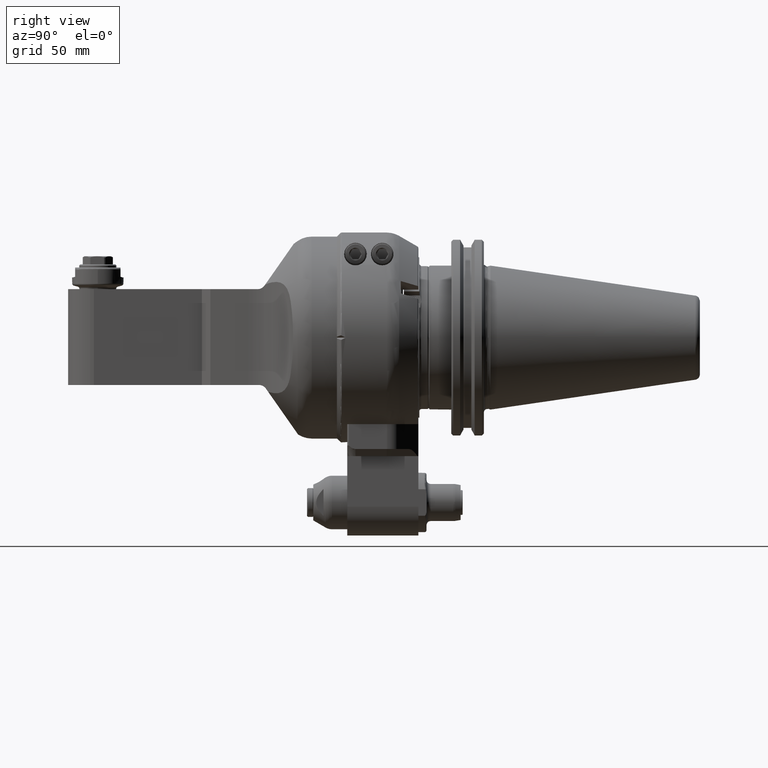
[diagram: clean part render]
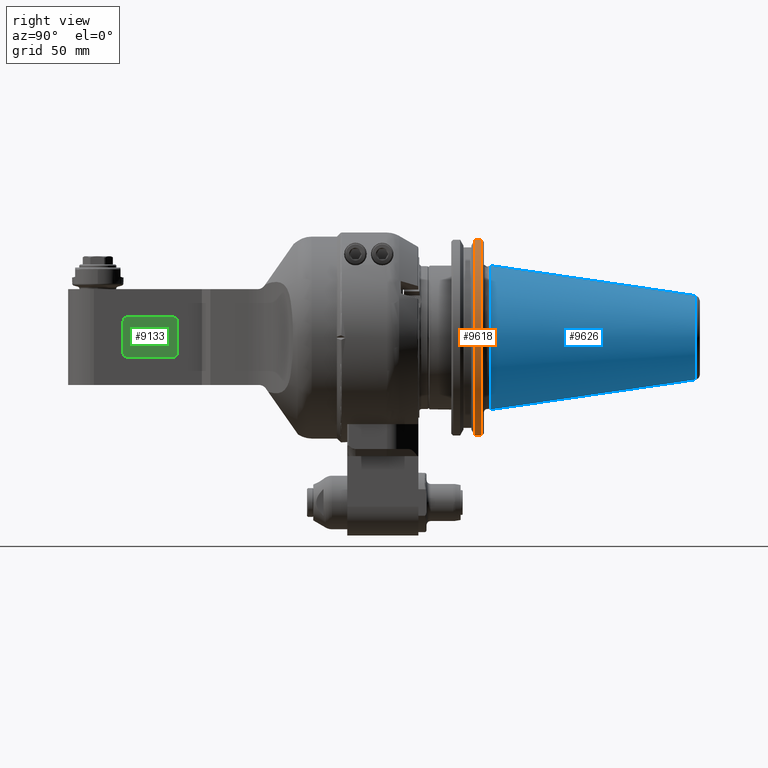
[diagram: same view with three faces highlighted in distinct colors, each labeled with its STEP entity id]
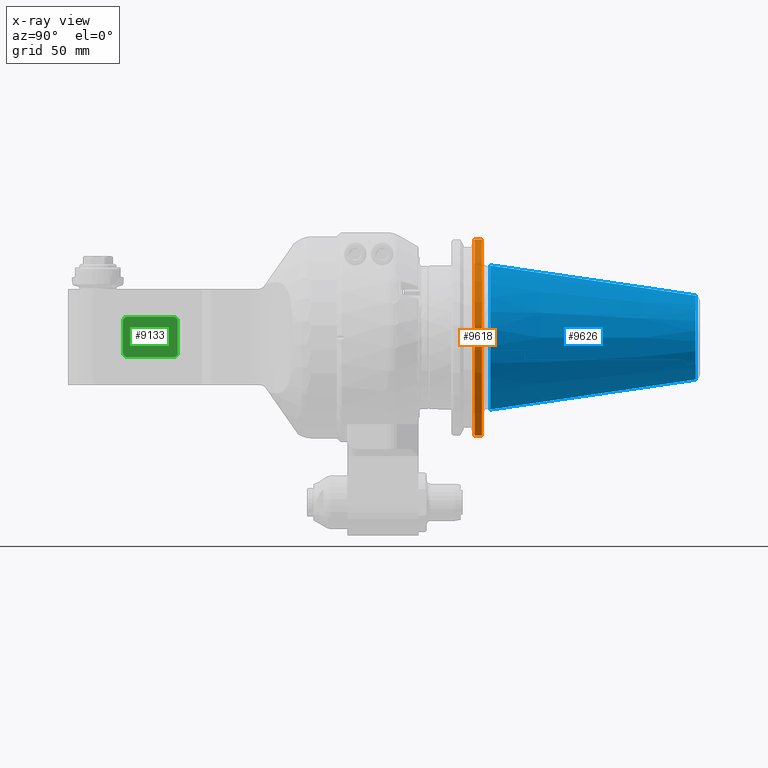
[diagram: x-ray of the same camera — body ghosted, the three highlighted faces saturated]
A machine part, right view with three faces highlighted in distinct colors.
The next image is the same camera in x-ray (body ghosted, the three faces saturated) — at least one of them is partly hidden behind the body in this view.
Their STEP definitions:

[orange] entity #9618 — the highlighted cylindrical surface (partial cylindrical patch) has radius 49.2125 mm, axis along (0, -1, 0).
#596=CYLINDRICAL_SURFACE('',#10758,1.9375);
#1099=CIRCLE('',#10757,1.9375);
#1100=CIRCLE('',#10759,1.9375);
#1642=FACE_OUTER_BOUND('',#2302,.T.);
#2302=EDGE_LOOP('',(#8472,#8473,#8474,#8475));
#2979=LINE('',#18877,#3660);
#2986=LINE('',#18906,#3667);
#3660=VECTOR('',#13475,0.137296583894724);
#3667=VECTOR('',#13494,0.137296583894724);
#4566=VERTEX_POINT('',#18871);
#4568=VERTEX_POINT('',#18876);
#4577=VERTEX_POINT('',#18899);
#4578=VERTEX_POINT('',#18905);
#5893=EDGE_CURVE('',#4568,#4566,#2979,.T.);
#5905=EDGE_CURVE('',#4577,#4566,#1099,.T.);
#5906=EDGE_CURVE('',#4577,#4578,#2986,.T.);
#5907=EDGE_CURVE('',#4568,#4578,#1100,.T.);
#8472=ORIENTED_EDGE('',*,*,#5905,.F.);
#8473=ORIENTED_EDGE('',*,*,#5906,.T.);
#8474=ORIENTED_EDGE('',*,*,#5907,.F.);
#8475=ORIENTED_EDGE('',*,*,#5893,.T.);
#9618=ADVANCED_FACE('',(#1642),#596,.T.);
#10757=AXIS2_PLACEMENT_3D('',#18903,#13490,#13491);
#10758=AXIS2_PLACEMENT_3D('',#18904,#13492,#13493);
#10759=AXIS2_PLACEMENT_3D('',#18907,#13495,#13496);
#13475=DIRECTION('',(-4.482491104692E-14,-1.,1.426247169675E-14));
#13490=DIRECTION('center_axis',(0.,-1.,0.));
#13491=DIRECTION('ref_axis',(0.2632258064516,0.,-0.964734250878399));
#13492=DIRECTION('center_axis',(0.,-1.,0.));
#13493=DIRECTION('ref_axis',(1.,0.,0.));
#13494=DIRECTION('',(-1.731871563176E-14,1.,0.));
#13495=DIRECTION('center_axis',(0.,1.,0.));
#13496=DIRECTION('ref_axis',(1.,0.,0.));
#18871=CARTESIAN_POINT('',(0.51,2.63189632949094,1.86917261107677));
#18876=CARTESIAN_POINT('',(0.51,2.76919291338583,1.86917261107677));
#18877=CARTESIAN_POINT('',(0.51,2.76919291338583,1.86917261107677));
#18899=CARTESIAN_POINT('',(0.51,2.63189632949094,-1.86917261107677));
#18903=CARTESIAN_POINT('Origin',(0.,2.63189632949094,0.));
#18904=CARTESIAN_POINT('Origin',(0.,2.28455298203071,0.));
#18905=CARTESIAN_POINT('',(0.51,2.76919291338583,-1.86917261107677));
#18906=CARTESIAN_POINT('',(0.51,2.63189632949094,-1.86917261107677));
#18907=CARTESIAN_POINT('Origin',(0.,2.76919291338583,0.));

[blue] entity #9626 — the highlighted conical surface has half-angle 8.297 deg.
#190=CONICAL_SURFACE('',#10782,1.08947467757008,0.144812411498922);
#1114=CIRCLE('',#10780,1.375);
#1115=CIRCLE('',#10781,1.375);
#1116=CIRCLE('',#10783,0.803949355140551);
#1117=CIRCLE('',#10784,0.803949355140551);
#1650=FACE_OUTER_BOUND('',#2310,.T.);
#2310=EDGE_LOOP('',(#8522,#8523,#8524,#8525,#8526,#8527));
#2996=LINE('',#18972,#3677);
#3677=VECTOR('',#13552,1.08947467757008);
#4594=VERTEX_POINT('',#18965);
#4595=VERTEX_POINT('',#18966);
#4596=VERTEX_POINT('',#18971);
#4597=VERTEX_POINT('',#18973);
#5930=EDGE_CURVE('',#4594,#4595,#1114,.T.);
#5932=EDGE_CURVE('',#4595,#4594,#1115,.T.);
#5933=EDGE_CURVE('',#4594,#4596,#2996,.T.);
#5934=EDGE_CURVE('',#4597,#4596,#1116,.T.);
#5935=EDGE_CURVE('',#4596,#4597,#1117,.T.);
#8522=ORIENTED_EDGE('',*,*,#5930,.F.);
#8523=ORIENTED_EDGE('',*,*,#5933,.T.);
#8524=ORIENTED_EDGE('',*,*,#5934,.F.);
#8525=ORIENTED_EDGE('',*,*,#5935,.F.);
#8526=ORIENTED_EDGE('',*,*,#5933,.F.);
#8527=ORIENTED_EDGE('',*,*,#5932,.F.);
#9626=ADVANCED_FACE('',(#1650),#190,.T.);
#10780=AXIS2_PLACEMENT_3D('',#18967,#13545,#13546);
#10781=AXIS2_PLACEMENT_3D('',#18969,#13548,#13549);
#10782=AXIS2_PLACEMENT_3D('',#18970,#13550,#13551);
#10783=AXIS2_PLACEMENT_3D('',#18974,#13553,#13554);
#10784=AXIS2_PLACEMENT_3D('',#18975,#13555,#13556);
#13545=DIRECTION('center_axis',(0.,-1.,0.));
#13546=DIRECTION('ref_axis',(0.,0.,1.));
#13548=DIRECTION('center_axis',(0.,-1.,0.));
#13549=DIRECTION('ref_axis',(0.,0.,1.));
#13550=DIRECTION('center_axis',(0.,-1.,0.));
#13551=DIRECTION('ref_axis',(0.,0.,1.));
#13552=DIRECTION('',(-1.76724869581176E-17,0.98953299358046,0.144306807239621));
#13553=DIRECTION('center_axis',(0.,1.,0.));
#13554=DIRECTION('ref_axis',(0.,0.,1.));
#13555=DIRECTION('center_axis',(0.,1.,0.));
#13556=DIRECTION('ref_axis',(0.,0.,1.));
#18965=CARTESIAN_POINT('',(0.,2.93307086614173,-1.375));
#18966=CARTESIAN_POINT('',(1.68388934882763E-16,2.93307086614173,1.37500000000001));
#18967=CARTESIAN_POINT('Origin',(0.,2.93307086614173,0.));
#18969=CARTESIAN_POINT('Origin',(0.,2.93307086614173,0.));
#18970=CARTESIAN_POINT('Origin',(0.,4.89095998066929,0.));
#18971=CARTESIAN_POINT('',(9.8455400444881E-17,6.84884909520071,-0.803949355140025));
#18972=CARTESIAN_POINT('',(1.33422167663829E-16,4.89095998066929,-1.08947467757008));
#18973=CARTESIAN_POINT('',(-0.803949355140551,6.84884909520079,-9.84554004449455E-17));
#18974=CARTESIAN_POINT('Origin',(0.,6.84884909520079,0.));
#18975=CARTESIAN_POINT('Origin',(0.,6.84884909520079,0.));

[green] entity #9133 — the highlighted planar face has unit normal (1, 0, -0).
#613=CIRCLE('',#9763,0.078740157480315);
#614=CIRCLE('',#9764,0.078740157480315);
#615=CIRCLE('',#9765,0.078740157480315);
#616=CIRCLE('',#9766,0.078740157480315);
#1157=FACE_OUTER_BOUND('',#1727,.T.);
#1727=EDGE_LOOP('',(#6078,#6079,#6080,#6081,#6082,#6083,#6084,#6085));
#2392=LINE('',#13868,#3073);
#2396=LINE('',#13880,#3077);
#2397=LINE('',#13884,#3078);
#2398=LINE('',#13887,#3079);
#3073=VECTOR('',#10906,0.610236220472441);
#3077=VECTOR('',#10916,0.885826771653543);
#3078=VECTOR('',#10919,0.610236220472441);
#3079=VECTOR('',#10922,0.885826771653543);
#3754=VERTEX_POINT('',#13866);
#3755=VERTEX_POINT('',#13867);
#3758=VERTEX_POINT('',#13875);
#3759=VERTEX_POINT('',#13877);
#3760=VERTEX_POINT('',#13879);
#3761=VERTEX_POINT('',#13881);
#3762=VERTEX_POINT('',#13883);
#3763=VERTEX_POINT('',#13885);
#4675=EDGE_CURVE('',#3754,#3755,#2392,.T.);
#4679=EDGE_CURVE('',#3754,#3758,#613,.T.);
#4680=EDGE_CURVE('',#3759,#3755,#614,.T.);
#4681=EDGE_CURVE('',#3759,#3760,#2396,.T.);
#4682=EDGE_CURVE('',#3761,#3760,#615,.T.);
#4683=EDGE_CURVE('',#3761,#3762,#2397,.T.);
#4684=EDGE_CURVE('',#3762,#3763,#616,.T.);
#4685=EDGE_CURVE('',#3763,#3758,#2398,.T.);
#6078=ORIENTED_EDGE('',*,*,#4679,.F.);
#6079=ORIENTED_EDGE('',*,*,#4675,.T.);
#6080=ORIENTED_EDGE('',*,*,#4680,.F.);
#6081=ORIENTED_EDGE('',*,*,#4681,.T.);
#6082=ORIENTED_EDGE('',*,*,#4682,.F.);
#6083=ORIENTED_EDGE('',*,*,#4683,.T.);
#6084=ORIENTED_EDGE('',*,*,#4684,.T.);
#6085=ORIENTED_EDGE('',*,*,#4685,.T.);
#8873=PLANE('',#9762);
#9133=ADVANCED_FACE('',(#1157),#8873,.T.);
#9762=AXIS2_PLACEMENT_3D('',#13874,#10910,#10911);
#9763=AXIS2_PLACEMENT_3D('',#13876,#10912,#10913);
#9764=AXIS2_PLACEMENT_3D('',#13878,#10914,#10915);
#9765=AXIS2_PLACEMENT_3D('',#13882,#10917,#10918);
#9766=AXIS2_PLACEMENT_3D('',#13886,#10920,#10921);
#10906=DIRECTION('',(0.,-1.,0.));
#10910=DIRECTION('center_axis',(0.,0.,1.));
#10911=DIRECTION('ref_axis',(1.,0.,0.));
#10912=DIRECTION('center_axis',(0.,0.,-1.));
#10913=DIRECTION('ref_axis',(-1.,0.,0.));
#10914=DIRECTION('center_axis',(0.,0.,-1.));
#10915=DIRECTION('ref_axis',(0.,-1.,0.));
#10916=DIRECTION('',(1.,0.,0.));
#10917=DIRECTION('center_axis',(0.,0.,-1.));
#10918=DIRECTION('ref_axis',(1.,0.,0.));
#10919=DIRECTION('',(0.,1.,0.));
#10920=DIRECTION('center_axis',(0.,0.,1.));
#10921=DIRECTION('ref_axis',(1.,0.,0.));
#10922=DIRECTION('',(-1.,0.,0.));
#13866=CARTESIAN_POINT('',(3.71062992125984,0.295275590551181,0.559055118110236));
#13867=CARTESIAN_POINT('',(3.71062992125984,-0.31496062992126,0.559055118110236));
#13868=CARTESIAN_POINT('',(3.71062992125984,0.295275590551181,0.559055118110236));
#13874=CARTESIAN_POINT('Origin',(0.,0.,0.559055118110236));
#13875=CARTESIAN_POINT('',(3.78937007874016,0.374015748031496,0.559055118110236));
#13876=CARTESIAN_POINT('Origin',(3.78937007874016,0.295275590551181,0.559055118110236));
#13877=CARTESIAN_POINT('',(3.78937007874016,-0.393700787401575,0.559055118110236));
#13878=CARTESIAN_POINT('Origin',(3.78937007874016,-0.31496062992126,0.559055118110236));
#13879=CARTESIAN_POINT('',(4.6751968503937,-0.393700787401575,0.559055118110236));
#13880=CARTESIAN_POINT('',(3.78937007874016,-0.393700787401575,0.559055118110236));
#13881=CARTESIAN_POINT('',(4.75393700787402,-0.31496062992126,0.559055118110236));
#13882=CARTESIAN_POINT('Origin',(4.6751968503937,-0.31496062992126,0.559055118110236));
#13883=CARTESIAN_POINT('',(4.75393700787402,0.295275590551181,0.559055118110236));
#13884=CARTESIAN_POINT('',(4.75393700787402,-0.31496062992126,0.559055118110236));
#13885=CARTESIAN_POINT('',(4.6751968503937,0.374015748031496,0.559055118110236));
#13886=CARTESIAN_POINT('Origin',(4.6751968503937,0.295275590551181,0.559055118110236));
#13887=CARTESIAN_POINT('',(4.6751968503937,0.374015748031496,0.559055118110236));